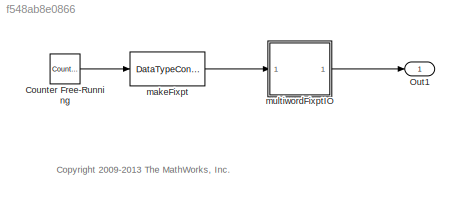
MODEL slx_f548ab8e0866
KIND model
CONFIG AbsTol = auto
CONFIG EnableMultiTasking = on
CONFIG FixedStep = auto
CONFIG MaxStep = auto
CONFIG MinStep = auto
CONFIG RelTol = 1e-3
CONFIG SampleTimeConstraint = Unconstrained
CONFIG Solver = FixedStepDiscrete
CONFIG SolverName = FixedStepDiscrete
CONFIG StartTime = 0.0
CONFIG StopTime = 10.0
BLOCK [Reference] Counter Free-Running  REF=simulink/Sources/Counter
Free-Running
  Ports = [0, 1]
  SourceBlock = simulink/Sources/Counter\nFree-Running
  SourceProductBaseCode = SL
  SourceProductName = Simulink
  SourceType = Counter Free-Running
BLOCK [Outport] Out1
  IconDisplay = Port number
BLOCK [DataTypeConversion] makeFixpt
  OutDataTypeStr = fixdt(1,33,16)
  RndMeth = Floor
  SaturateOnIntegerOverflow = off
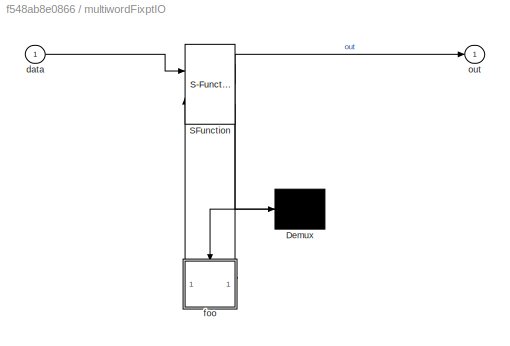
BLOCK [SubSystem] multiwordFixptIO
  ErrorFcn = Stateflow.Translate.translate
  PermitHierarchicalResolution = ExplicitOnly
  Ports = [1, 1]
  RequestExecContextInheritance = off
  SFBlockType = Chart
  TreatAsAtomicUnit = on
  Variant = off
BLOCK [Demux] multiwordFixptIO/ Demux 
  Outputs = 1
  Ports = [1, 1]
BLOCK [S-Function] multiwordFixptIO/ SFunction 
  EnableBusSupport = off
  FunctionName = sf_sfun
  PortCounts = [2 3]
  Ports = [2, 3]
  SFcnIsStateOwnerBlock = off
  SFunctionDeploymentMode = off
  Tag = Stateflow S-Function sf_multiword_fixpt 1
BLOCK [Inport] multiwordFixptIO/data
  IconDisplay = Port number
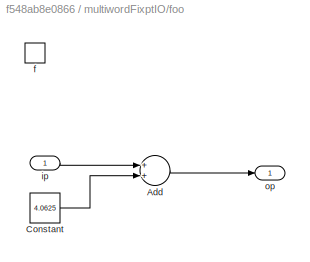
BLOCK [SubSystem] multiwordFixptIO/foo
  Ports = [1, 1, 0, 1]
  PreDeleteFcn = Stateflow.SLINSF.SimulinkMan.removePreDeleteFcn
  RTWSystemCode = Nonreusable function
  RequestExecContextInheritance = off
  UndoDeleteFcn = Stateflow.SLINSF.SimulinkMan.restorePreDeleteFcn
  Variant = off
BLOCK [Sum] multiwordFixptIO/foo/Add
  InputSameDT = off
  OutDataTypeStr = fixdt(1,33,16)
  Ports = [2, 1]
  SaturateOnIntegerOverflow = off
BLOCK [Constant] multiwordFixptIO/foo/Constant
  OutDataTypeStr = fixdt(1,16,4)
  Value = 4.0625
BLOCK [TriggerPort] multiwordFixptIO/foo/f
  CopyFcn = Stateflow.SLINSF.SimulinkMan.removeBlockPreDeleteFcn
  Ports = []
  PreDeleteFcn = Stateflow.SLINSF.SimulinkMan.unsafePredeleteFcn
  TriggerType = function-call
  VariantControl = (inherit)
BLOCK [Inport] multiwordFixptIO/foo/ip
  IconDisplay = Port number
  OutDataTypeStr = fixdt(1,33,16)
BLOCK [Outport] multiwordFixptIO/foo/op
  IconDisplay = Port number
BLOCK [Outport] multiwordFixptIO/out
  IconDisplay = Port number
ANNOTATION (root): <copyright redacted>
LINE Counter Free-Running:1 -> makeFixpt:1
LINE makeFixpt:1 -> multiwordFixptIO:1
LINE multiwordFixptIO:1 -> Out1:1
CHART multiwordFixptIO states=2 transitions=0
  STATE_LABEL 'A\ndu:\nout = foo(data);'
  STATE_LABEL 'op = foo(ip)'
